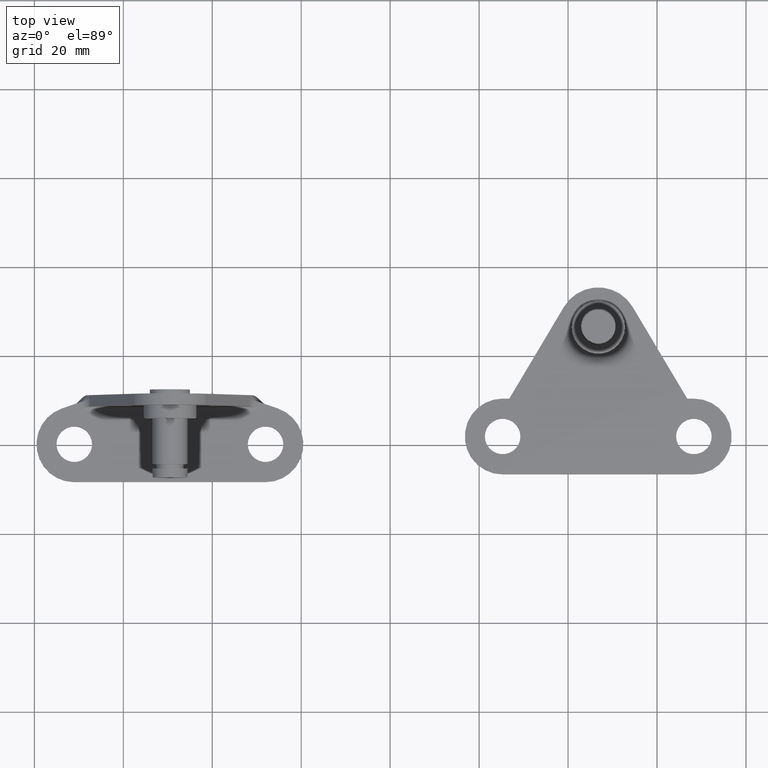
[diagram: clean part render]
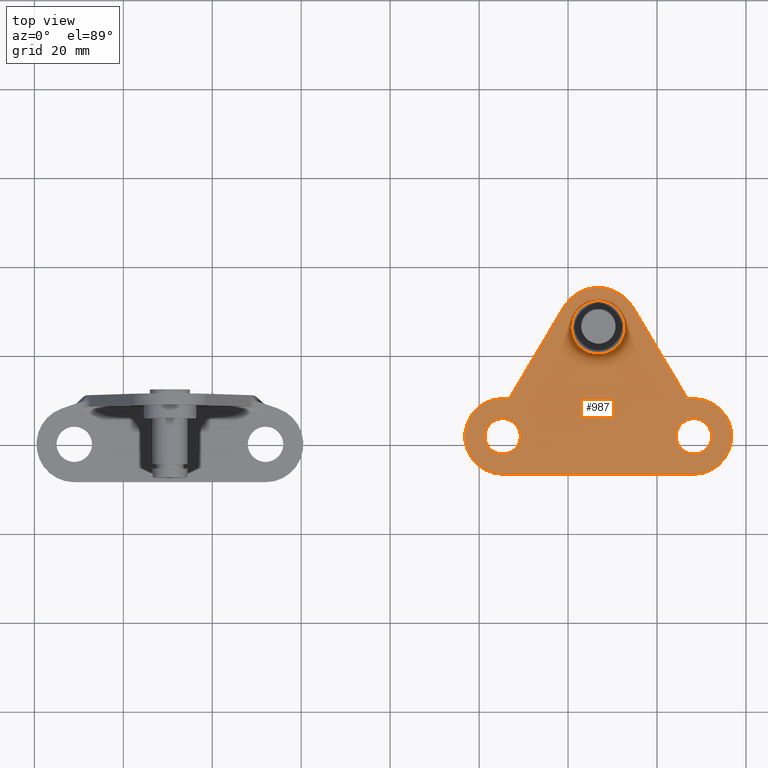
[diagram: same view with one face highlighted and labeled with its STEP entity id]
A machine part, top view. The second image highlights one B-rep face of the part: STEP entity #987.
In plain terms, the highlighted planar face has unit normal (-0, 0, 1).
Its self-contained STEP definition (entity closure, byte-faithful):
#66=LINE('',#1951,#112);
#72=LINE('',#1963,#118);
#76=LINE('',#1978,#122);
#78=LINE('',#1983,#124);
#82=LINE('',#1990,#128);
#112=VECTOR('',#1359,1.5);
#118=VECTOR('',#1367,1.5);
#122=VECTOR('',#1385,43.);
#124=VECTOR('',#1389,23.9791576165636);
#128=VECTOR('',#1395,23.9791576165636);
#169=PLANE('',#1111);
#227=FACE_BOUND('',#390,.T.);
#228=FACE_BOUND('',#391,.T.);
#229=FACE_BOUND('',#392,.T.);
#295=FACE_OUTER_BOUND('',#389,.T.);
#389=EDGE_LOOP('',(#901,#902,#903,#904,#905,#906,#907,#908));
#390=EDGE_LOOP('',(#909));
#391=EDGE_LOOP('',(#910));
#392=EDGE_LOOP('',(#911));
#439=CIRCLE('',#1071,6.);
#449=CIRCLE('',#1092,4.);
#451=CIRCLE('',#1095,4.);
#454=CIRCLE('',#1101,8.5);
#456=CIRCLE('',#1104,8.5);
#458=CIRCLE('',#1110,9.);
#521=VERTEX_POINT('',#1906);
#531=VERTEX_POINT('',#1937);
#533=VERTEX_POINT('',#1942);
#536=VERTEX_POINT('',#1948);
#537=VERTEX_POINT('',#1950);
#540=VERTEX_POINT('',#1957);
#542=VERTEX_POINT('',#1961);
#544=VERTEX_POINT('',#1967);
#546=VERTEX_POINT('',#1973);
#548=VERTEX_POINT('',#1982);
#550=VERTEX_POINT('',#1988);
#637=EDGE_CURVE('',#521,#521,#439,.T.);
#647=EDGE_CURVE('',#531,#531,#449,.T.);
#649=EDGE_CURVE('',#533,#533,#451,.T.);
#652=EDGE_CURVE('',#537,#536,#66,.T.);
#658=EDGE_CURVE('',#540,#542,#72,.T.);
#661=EDGE_CURVE('',#542,#544,#454,.T.);
#663=EDGE_CURVE('',#546,#537,#456,.T.);
#666=EDGE_CURVE('',#544,#546,#76,.T.);
#668=EDGE_CURVE('',#548,#540,#78,.T.);
#672=EDGE_CURVE('',#536,#550,#82,.T.);
#674=EDGE_CURVE('',#550,#548,#458,.T.);
#901=ORIENTED_EDGE('',*,*,#674,.T.);
#902=ORIENTED_EDGE('',*,*,#668,.T.);
#903=ORIENTED_EDGE('',*,*,#658,.T.);
#904=ORIENTED_EDGE('',*,*,#661,.T.);
#905=ORIENTED_EDGE('',*,*,#666,.T.);
#906=ORIENTED_EDGE('',*,*,#663,.T.);
#907=ORIENTED_EDGE('',*,*,#652,.T.);
#908=ORIENTED_EDGE('',*,*,#672,.T.);
#909=ORIENTED_EDGE('',*,*,#637,.T.);
#910=ORIENTED_EDGE('',*,*,#647,.T.);
#911=ORIENTED_EDGE('',*,*,#649,.T.);
#987=ADVANCED_FACE('',(#295,#227,#228,#229),#169,.T.);
#1071=AXIS2_PLACEMENT_3D('',#1907,#1304,#1305);
#1092=AXIS2_PLACEMENT_3D('',#1938,#1346,#1347);
#1095=AXIS2_PLACEMENT_3D('',#1943,#1352,#1353);
#1101=AXIS2_PLACEMENT_3D('',#1969,#1373,#1374);
#1104=AXIS2_PLACEMENT_3D('',#1974,#1379,#1380);
#1110=AXIS2_PLACEMENT_3D('',#1993,#1400,#1401);
#1111=AXIS2_PLACEMENT_3D('',#1994,#1402,#1403);
#1304=DIRECTION('center_axis',(0.,0.,-1.));
#1305=DIRECTION('ref_axis',(-1.,0.,0.));
#1346=DIRECTION('center_axis',(0.,0.,-1.));
#1347=DIRECTION('ref_axis',(-1.,0.,0.));
#1352=DIRECTION('center_axis',(0.,0.,-1.));
#1353=DIRECTION('ref_axis',(-1.,0.,0.));
#1359=DIRECTION('',(-1.,0.,0.));
#1367=DIRECTION('',(-1.,0.,0.));
#1373=DIRECTION('center_axis',(0.,0.,1.));
#1374=DIRECTION('ref_axis',(0.,1.,0.));
#1379=DIRECTION('center_axis',(0.,0.,1.));
#1380=DIRECTION('ref_axis',(0.,-1.,0.));
#1385=DIRECTION('',(1.,0.,0.));
#1389=DIRECTION('',(-0.511559683431817,-0.859247746745454,0.));
#1395=DIRECTION('',(-0.511559683431817,0.859247746745453,0.));
#1400=DIRECTION('center_axis',(0.,0.,1.));
#1401=DIRECTION('ref_axis',(1.,0.,0.));
#1402=DIRECTION('center_axis',(0.,0.,1.));
#1403=DIRECTION('ref_axis',(1.,0.,0.));
#1906=CARTESIAN_POINT('',(36.,24.5,2.5));
#1907=CARTESIAN_POINT('Origin',(30.,24.5,2.5));
#1937=CARTESIAN_POINT('',(55.5,4.89858719658941E-16,2.5));
#1938=CARTESIAN_POINT('Origin',(51.5,0.,2.5));
#1942=CARTESIAN_POINT('',(12.5,4.89858719658941E-16,2.5));
#1943=CARTESIAN_POINT('Origin',(8.5,0.,2.5));
#1948=CARTESIAN_POINT('',(50.,8.5,2.5));
#1950=CARTESIAN_POINT('',(51.5,8.5,2.5));
#1951=CARTESIAN_POINT('',(51.5,8.5,2.5));
#1957=CARTESIAN_POINT('',(10.,8.5,2.5));
#1961=CARTESIAN_POINT('',(8.5,8.5,2.5));
#1963=CARTESIAN_POINT('',(51.5,8.5,2.5));
#1967=CARTESIAN_POINT('',(8.5,-8.5,2.5));
#1969=CARTESIAN_POINT('Origin',(8.5,0.,2.5));
#1973=CARTESIAN_POINT('',(51.5,-8.5,2.5));
#1974=CARTESIAN_POINT('Origin',(51.5,0.,2.5));
#1978=CARTESIAN_POINT('',(8.5,-8.5,2.5));
#1982=CARTESIAN_POINT('',(22.2667702792909,29.1040371508864,2.5));
#1983=CARTESIAN_POINT('',(22.2667702792909,29.1040371508864,2.5));
#1988=CARTESIAN_POINT('',(37.7332297207091,29.1040371508864,2.5));
#1990=CARTESIAN_POINT('',(50.,8.5,2.5));
#1993=CARTESIAN_POINT('Origin',(30.,24.5,2.5));
#1994=CARTESIAN_POINT('Origin',(30.,24.4999961111197,2.5));